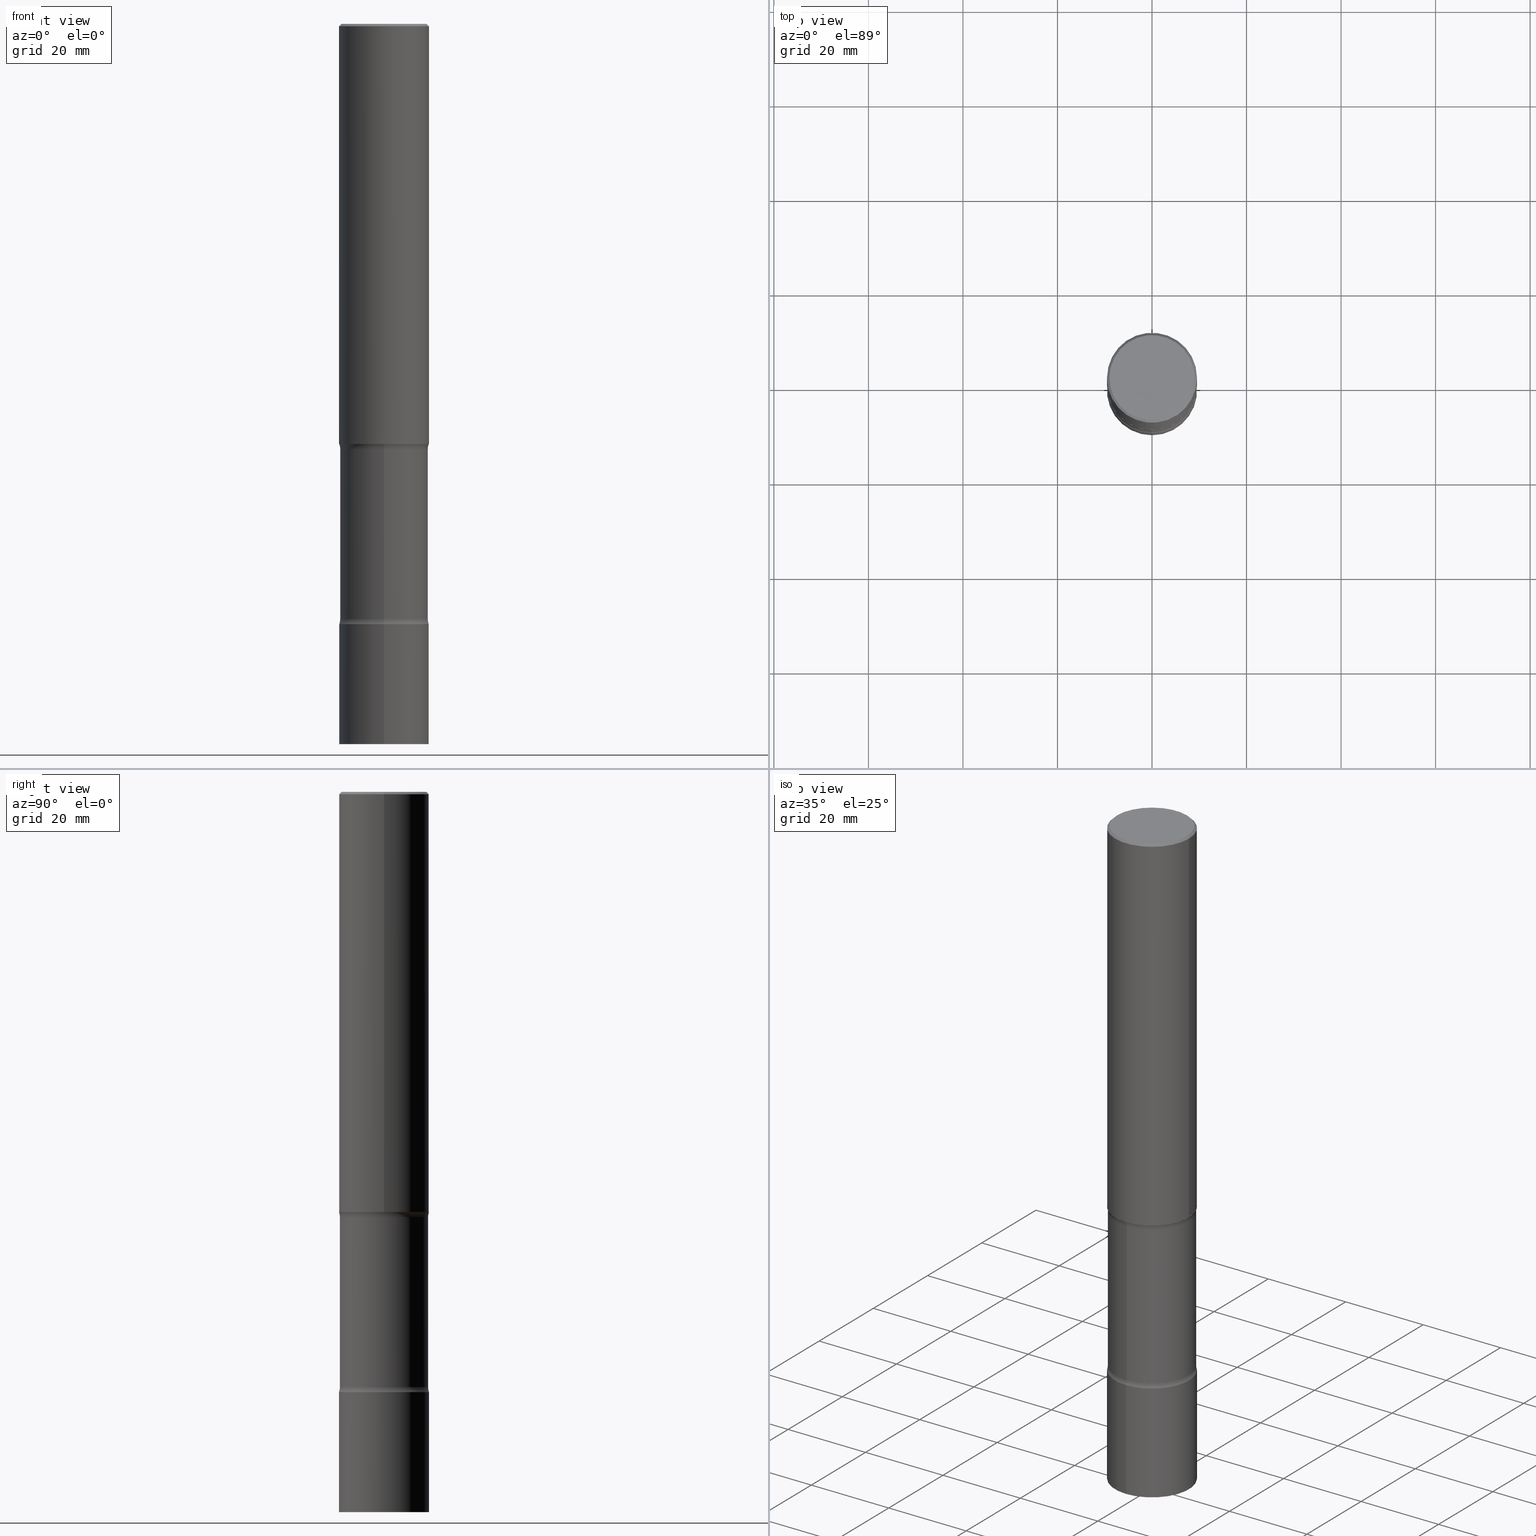
[diagram: canonical four-view strip — front | top / right | iso, engineering-drawing reading convention]
A machine part, canonical four-view strip (front | top / right | iso — engineering-drawing reading convention). The complete STEP part file that produces these views, byte-faithful:
ISO-10303-21;
HEADER;
FILE_DESCRIPTION (( 'STEP AP203' ),
    '1' );
FILE_NAME ('34646.STEP',
    '2024-03-11T13:20:11',
    ( '' ),
    ( '' ),
    'SwSTEP 2.0',
    'SolidWorks 2023',
    '' );
FILE_SCHEMA (( 'CONFIG_CONTROL_DESIGN' ));
ENDSEC;

DATA;
#1 = ORIENTED_EDGE ( 'NONE', *, *, #353, .T. ) ;
#2 = DIRECTION ( 'NONE',  ( -2.445201761866351405E-29, 3.491863761506864371E-15, 1.000000000000000000 ) ) ;
#3 = MECHANICAL_CONTEXT ( 'NONE', #76, 'mechanical' ) ;
#4 = DIRECTION ( 'NONE',  ( 6.982962677686266711E-15, 1.000000000000000000, -2.913971193241876822E-15 ) ) ;
#5 = FACE_OUTER_BOUND ( 'NONE', #504, .T. ) ;
#6 = VECTOR ( 'NONE', #13, 39.37007874015748143 ) ;
#7 = APPROVAL_PERSON_ORGANIZATION ( #447, #31, #332 ) ;
#8 = DIRECTION ( 'NONE',  ( -2.445201761866351405E-29, 3.491863761506864371E-15, 1.000000000000000000 ) ) ;
#9 = DIRECTION ( 'NONE',  ( -2.445201761866351405E-29, 3.491863761506864371E-15, 1.000000000000000000 ) ) ;
#10 = APPLICATION_CONTEXT ( 'configuration controlled 3d designs of mechanical parts and assemblies' ) ;
#11 = FACE_OUTER_BOUND ( 'NONE', #357, .T. ) ;
#12 = CARTESIAN_POINT ( 'NONE',  ( 1.212305259894691470E-28, -1.730850616944349018E-14, -4.957353194726919376 ) ) ;
#13 = DIRECTION ( 'NONE',  ( -0.7071067811865472397, 2.468850131082253905E-15, -0.7071067811865477948 ) ) ;
#14 = AXIS2_PLACEMENT_3D ( 'NONE', #161, #361, #438 ) ;
#15 = VECTOR ( 'NONE', #487, 39.37007874015748143 ) ;
#16 = APPROVAL_STATUS ( 'not_yet_approved' ) ;
#17 = DIRECTION ( 'NONE',  ( -2.445468806185136597E-29, 3.491481338843145583E-15, 1.000000000000000000 ) ) ;
#18 = SECURITY_CLASSIFICATION_LEVEL ( 'unclassified' ) ;
#19 = CARTESIAN_POINT ( 'NONE',  ( 8.301035426953627063E-29, -1.258980630160007974E-14, -3.500000000000000888 ) ) ;
#20 = CARTESIAN_POINT ( 'NONE',  ( 1.467121057119811123E-28, -2.095118256904118859E-14, -6.000000000000000888 ) ) ;
#21 = CIRCLE ( 'NONE', #421, 0.3750000000000000555 ) ;
#22 = PERSON_AND_ORGANIZATION ( #69, #105 ) ;
#23 = AXIS2_PLACEMENT_3D ( 'NONE', #44, #90, #124 ) ;
#24 = DIRECTION ( 'NONE',  ( -2.445201761866351405E-29, 3.491863761506864371E-15, 1.000000000000000000 ) ) ;
#25 = FACE_OUTER_BOUND ( 'NONE', #108, .T. ) ;
#26 = ORIENTED_EDGE ( 'NONE', *, *, #61, .F. ) ;
#27 = APPROVAL_ROLE ( '' ) ;
#28 = CARTESIAN_POINT ( 'NONE',  ( 1.222600880933175787E-28, -1.745931880753432383E-14, -5.000000000000000000 ) ) ;
#29 = DIRECTION ( 'NONE',  ( 2.616648921585421655E-29, -3.246341670622831231E-15, -1.000000000000000000 ) ) ;
#30 = ORIENTED_EDGE ( 'NONE', *, *, #186, .T. ) ;
#31 = APPROVAL ( #16, 'UNSPECIFIED' ) ;
#32 = AXIS2_PLACEMENT_3D ( 'NONE', #253, #412, #101 ) ;
#33 = LOCAL_TIME ( 9, 20, 10.00000000000000000, #455 ) ;
#34 = ORIENTED_EDGE ( 'NONE', *, *, #459, .F. ) ;
#35 = VERTEX_POINT ( 'NONE', #166 ) ;
#36 = EDGE_LOOP ( 'NONE', ( #309, #81, #173, #71 ) ) ;
#37 = EDGE_LOOP ( 'NONE', ( #424, #301 ) ) ;
#38 = AXIS2_PLACEMENT_3D ( 'NONE', #342, #24, #213 ) ;
#39 = EDGE_CURVE ( 'NONE', #155, #110, #448, .T. ) ;
#40 = ORIENTED_EDGE ( 'NONE', *, *, #168, .T. ) ;
#41 = CARTESIAN_POINT ( 'NONE',  ( -1.043851414335219820E-46, 1.490343170380447200E-32, 4.268512490100411279E-18 ) ) ;
#42 = ADVANCED_FACE ( 'NONE', ( #11 ), #162, .F. ) ;
#43 = CARTESIAN_POINT ( 'NONE',  ( 1.212305259894691470E-28, -1.730850616944349018E-14, -4.957353194726919376 ) ) ;
#44 = CARTESIAN_POINT ( 'NONE',  ( 4.890937612370289799E-31, -6.982962677686315028E-17, -0.02000000000000006981 ) ) ;
#45 = CIRCLE ( 'NONE', #274, 0.3675000000000002709 ) ;
#46 = AXIS2_PLACEMENT_3D ( 'NONE', #259, #102, #413 ) ;
#47 = CARTESIAN_POINT ( 'NONE',  ( -2.618611004132228137E-15, -0.3750000000000175970, -4.999999999999999112 ) ) ;
#48 = CARTESIAN_POINT ( 'NONE',  ( 1.211441709230488827E-28, -1.732087270645738470E-14, -4.957353194726919376 ) ) ;
#49 = CARTESIAN_POINT ( 'NONE',  ( 0.000000000000000000, 0.000000000000000000, 0.000000000000000000 ) ) ;
#50 = PLANE ( 'NONE',  #57 ) ;
#51 = LINE ( 'NONE', #367, #507 ) ;
#52 = PERSON_AND_ORGANIZATION ( #69, #105 ) ;
#53 = CARTESIAN_POINT ( 'NONE',  ( 1.211441709230488827E-28, -1.732087270645738470E-14, -4.957353194726919376 ) ) ;
#54 = DIRECTION ( 'NONE',  ( 2.616648921585421655E-29, -3.246341670622831231E-15, -1.000000000000000000 ) ) ;
#55 = ADVANCED_FACE ( 'NONE', ( #235 ), #435, .T. ) ;
#56 = CLOSED_SHELL ( 'NONE', ( #276, #156, #136, #302 ) ) ;
#57 = AXIS2_PLACEMENT_3D ( 'NONE', #205, #67, #180 ) ;
#58 = COORDINATED_UNIVERSAL_TIME_OFFSET ( 5, 0, .BEHIND. ) ;
#59 = FACE_OUTER_BOUND ( 'NONE', #107, .T. ) ;
#60 = CARTESIAN_POINT ( 'NONE',  ( 0.3750000000000000555, -1.483879569008336409E-14, -3.500000000000000888 ) ) ;
#61 = EDGE_CURVE ( 'NONE', #429, #352, #285, .T. ) ;
#62 = LINE ( 'NONE', #440, #319 ) ;
#63 = DIRECTION ( 'NONE',  ( -1.000000000000000000, 6.982962677686265922E-15, -4.883557194083112901E-29 ) ) ;
#64 = VERTEX_POINT ( 'NONE', #47 ) ;
#65 = AXIS2_PLACEMENT_3D ( 'NONE', #286, #317, #364 ) ;
#66 = CONICAL_SURFACE ( 'NONE', #230, 0.3749999999999997780, 0.7853981633974479459 ) ;
#67 = DIRECTION ( 'NONE',  ( 2.445201761866351405E-29, -3.491863761506864371E-15, -1.000000000000000000 ) ) ;
#68 = DIRECTION ( 'NONE',  ( -2.445201761866351405E-29, 3.491863761506864371E-15, 1.000000000000000000 ) ) ;
#69 = PERSON ( 'UNSPECIFIED', 'UNSPECIFIED', 'UNSPECIFIED', ('UNSPECIFIED'), ('UNSPECIFIED'), ('UNSPECIFIED') ) ;
#70 = EDGE_LOOP ( 'NONE', ( #85, #103 ) ) ;
#71 = ORIENTED_EDGE ( 'NONE', *, *, #347, .T. ) ;
#72 = ADVANCED_FACE ( 'NONE', ( #323 ), #117, .F. ) ;
#73 = ORIENTED_EDGE ( 'NONE', *, *, #39, .F. ) ;
#74 = EDGE_CURVE ( 'NONE', #466, #231, #439, .T. ) ;
#75 = AXIS2_PLACEMENT_3D ( 'NONE', #322, #9, #288 ) ;
#76 = APPLICATION_CONTEXT ( 'configuration controlled 3d designs of mechanical parts and assemblies' ) ;
#77 = CIRCLE ( 'NONE', #178, 0.3675000000000003264 ) ;
#78 = ORIENTED_EDGE ( 'NONE', *, *, #111, .T. ) ;
#79 = ORIENTED_EDGE ( 'NONE', *, *, #111, .F. ) ;
#80 = EDGE_CURVE ( 'NONE', #505, #497, #267, .T. ) ;
#81 = ORIENTED_EDGE ( 'NONE', *, *, #80, .F. ) ;
#82 = ORIENTED_EDGE ( 'NONE', *, *, #393, .T. ) ;
#83 = AXIS2_PLACEMENT_3D ( 'NONE', #374, #63, #135 ) ;
#84 = DIRECTION ( 'NONE',  ( 0.000000000000000000, 0.000000000000000000, 1.000000000000000000 ) ) ;
#85 = ORIENTED_EDGE ( 'NONE', *, *, #80, .T. ) ;
#86 = ADVANCED_FACE ( 'NONE', ( #368 ), #232, .T. ) ;
#87 = CARTESIAN_POINT ( 'NONE',  ( 2.463921585354229188E-29, -3.843271519251016677E-14, -5.999999999999999112 ) ) ;
#88 = DIRECTION ( 'NONE',  ( 2.616648921585421655E-29, -3.246341670622831231E-15, -1.000000000000000000 ) ) ;
#89 = ORIENTED_EDGE ( 'NONE', *, *, #479, .F. ) ;
#90 = DIRECTION ( 'NONE',  ( -2.445468806185136597E-29, 3.491481338843145583E-15, 1.000000000000000000 ) ) ;
#91 = DIRECTION ( 'NONE',  ( -2.445201761866351405E-29, 3.491863761506864371E-15, 1.000000000000000000 ) ) ;
#92 = PERSON_AND_ORGANIZATION ( #69, #105 ) ;
#93 = EDGE_CURVE ( 'NONE', #352, #466, #460, .T. ) ;
#94 = LINE ( 'NONE', #400, #354 ) ;
#95 = DIRECTION ( 'NONE',  ( -6.982962677686265922E-15, -1.000000000000000000, 2.913971193241879977E-15 ) ) ;
#96 = SHAPE_DEFINITION_REPRESENTATION ( #149, #271 ) ;
#97 = CIRCLE ( 'NONE', #434, 0.1249999999999998335 ) ;
#98 = DATE_AND_TIME ( #375, #33 ) ;
#99 = FACE_OUTER_BOUND ( 'NONE', #37, .T. ) ;
#100 = ADVANCED_FACE ( 'NONE', ( #198 ), #146, .F. ) ;
#101 = DIRECTION ( 'NONE',  ( 1.000000000000000000, -6.982962677686265922E-15, 4.876176775795935793E-29 ) ) ;
#102 = DIRECTION ( 'NONE',  ( 2.616648921585421655E-29, -3.246341670622831231E-15, -1.000000000000000000 ) ) ;
#103 = ORIENTED_EDGE ( 'NONE', *, *, #308, .T. ) ;
#104 = AXIS2_PLACEMENT_3D ( 'NONE', #491, #415, #486 ) ;
#105 = ORGANIZATION ( 'UNSPECIFIED', 'UNSPECIFIED', '' ) ;
#106 = EDGE_LOOP ( 'NONE', ( #157, #114, #392, #270 ) ) ;
#107 = EDGE_LOOP ( 'NONE', ( #260, #458, #194, #129 ) ) ;
#108 = EDGE_LOOP ( 'NONE', ( #430, #185 ) ) ;
#109 = AXIS2_PLACEMENT_3D ( 'NONE', #299, #17, #379 ) ;
#110 = VERTEX_POINT ( 'NONE', #405 ) ;
#111 = EDGE_CURVE ( 'NONE', #222, #112, #94, .T. ) ;
#112 = VERTEX_POINT ( 'NONE', #366 ) ;
#113 = MANIFOLD_SOLID_BREP ( 'Body-Move/Copy2[4]', #326 ) ;
#114 = ORIENTED_EDGE ( 'NONE', *, *, #93, .T. ) ;
#115 = MANIFOLD_SOLID_BREP ( 'Body-Move/Copy2[1]', #56 ) ;
#116 = ADVANCED_FACE ( 'NONE', ( #159 ), #381, .F. ) ;
#117 = PLANE ( 'NONE',  #188 ) ;
#118 = AXIS2_PLACEMENT_3D ( 'NONE', #28, #144, #172 ) ;
#119 = CARTESIAN_POINT ( 'NONE',  ( -2.618611004132204077E-15, -0.3750000000000210387, -5.999999999999999112 ) ) ;
#120 = LOCAL_TIME ( 9, 20, 10.00000000000000000, #417 ) ;
#121 = DIRECTION ( 'NONE',  ( 6.982962677686265922E-15, 1.000000000000000000, -2.973439993103957486E-15 ) ) ;
#122 = CYLINDRICAL_SURFACE ( 'NONE', #75, 0.3750000000000001110 ) ;
#123 = DIRECTION ( 'NONE',  ( 2.616648921585421655E-29, -3.246341670622831231E-15, -1.000000000000000000 ) ) ;
#124 = DIRECTION ( 'NONE',  ( 1.000000000000000000, -6.982962677686265922E-15, 0.000000000000000000 ) ) ;
#125 = CARTESIAN_POINT ( 'NONE',  ( 0.000000000000000000, 0.000000000000000000, 0.000000000000000000 ) ) ;
#126 = CARTESIAN_POINT ( 'NONE',  ( 8.412627143980496654E-29, -1.272825240267701729E-14, -3.542646805273081512 ) ) ;
#127 = CIRCLE ( 'NONE', #348, 0.3750000000000004996 ) ;
#128 = EDGE_CURVE ( 'NONE', #228, #64, #420, .T. ) ;
#129 = ORIENTED_EDGE ( 'NONE', *, *, #128, .F. ) ;
#130 = CARTESIAN_POINT ( 'NONE',  ( -1.043851414335219820E-46, 1.490343170380447200E-32, 4.268512490100411279E-18 ) ) ;
#131 = PERSON_AND_ORGANIZATION ( #69, #105 ) ;
#132 = DIRECTION ( 'NONE',  ( -2.445201761866351405E-29, 3.491863761506864371E-15, 1.000000000000000000 ) ) ;
#133 = PERSON_AND_ORGANIZATION_ROLE ( 'creator' ) ;
#134 = CARTESIAN_POINT ( 'NONE',  ( -0.3750000000000000555, -3.480471897263558651E-15, -3.500000000000000888 ) ) ;
#135 = DIRECTION ( 'NONE',  ( -6.982962677686265133E-15, -1.000000000000000000, 0.000000000000000000 ) ) ;
#136 = ADVANCED_FACE ( 'NONE', ( #163 ), #50, .F. ) ;
#137 = AXIS2_PLACEMENT_3D ( 'NONE', #358, #2, #95 ) ;
#138 = CC_DESIGN_APPROVAL ( #211, ( #189 ) ) ;
#139 = DATE_AND_TIME ( #215, #387 ) ;
#140 = FACE_OUTER_BOUND ( 'NONE', #257, .T. ) ;
#141 = LINE ( 'NONE', #346, #341 ) ;
#142 = ORIENTED_EDGE ( 'NONE', *, *, #369, .T. ) ;
#143 = PERSON_AND_ORGANIZATION_ROLE ( 'creator' ) ;
#144 = DIRECTION ( 'NONE',  ( 2.616648921585421655E-29, -3.246341670622831231E-15, -1.000000000000000000 ) ) ;
#145 = CARTESIAN_POINT ( 'NONE',  ( 2.566238784049788529E-15, 0.3674999999999875588, -3.542646805273082400 ) ) ;
#146 = TOROIDAL_SURFACE ( 'NONE', #268, 0.4924999999999999378, 0.1249999999999998473 ) ;
#147 = EDGE_CURVE ( 'NONE', #269, #64, #418, .T. ) ;
#148 = TOROIDAL_SURFACE ( 'NONE', #193, 0.4925000000000002154, 0.1249999999999999584 ) ;
#149 = PRODUCT_DEFINITION_SHAPE ( 'NONE', 'NONE',  #187 ) ;
#150 = ORIENTED_EDGE ( 'NONE', *, *, #316, .T. ) ;
#151 = EDGE_LOOP ( 'NONE', ( #488, #463, #310, #196 ) ) ;
#152 = EDGE_CURVE ( 'NONE', #352, #429, #45, .T. ) ;
#153 = CONICAL_SURFACE ( 'NONE', #217, 0.3749999999999997780, 0.7853981633974479459 ) ;
#154 = APPROVAL_PERSON_ORGANIZATION ( #52, #266, #27 ) ;
#155 = VERTEX_POINT ( 'NONE', #255 ) ;
#156 = ADVANCED_FACE ( 'NONE', ( #59 ), #294, .T. ) ;
#157 = ORIENTED_EDGE ( 'NONE', *, *, #152, .F. ) ;
#158 = ADVANCED_FACE ( 'NONE', ( #140 ), #183, .T. ) ;
#159 = FACE_OUTER_BOUND ( 'NONE', #191, .T. ) ;
#160 = FACE_OUTER_BOUND ( 'NONE', #335, .T. ) ;
#161 = CARTESIAN_POINT ( 'NONE',  ( 1.484265773091717840E-28, -2.070566047815715111E-14, -5.999999999999999112 ) ) ;
#162 = TOROIDAL_SURFACE ( 'NONE', #312, 0.4924999999999999378, 0.1249999999999998473 ) ;
#163 = FACE_OUTER_BOUND ( 'NONE', #207, .T. ) ;
#164 = DIRECTION ( 'NONE',  ( 2.616648921585421655E-29, -3.246341670622831231E-15, -1.000000000000000000 ) ) ;
#165 = DIRECTION ( 'NONE',  ( 6.860497997771532351E-15, 1.000000000000000000, 0.000000000000000000 ) ) ;
#166 = CARTESIAN_POINT ( 'NONE',  ( 2.664535259100510198E-15, 0.3749999999999791278, -6.000000000000001776 ) ) ;
#167 = DIRECTION ( 'NONE',  ( -2.445468806185136597E-29, 3.491481338843145583E-15, 1.000000000000000000 ) ) ;
#168 = EDGE_CURVE ( 'NONE', #231, #466, #127, .T. ) ;
#169 = CARTESIAN_POINT ( 'NONE',  ( 0.3749999999999997780, -2.642516375941186056E-15, -0.02000000000000006981 ) ) ;
#170 = EDGE_CURVE ( 'NONE', #383, #465, #177, .T. ) ;
#171 = DATE_AND_TIME ( #292, #410 ) ;
#172 = DIRECTION ( 'NONE',  ( 6.982962677686265922E-15, 1.000000000000000000, -2.913971193241879977E-15 ) ) ;
#173 = ORIENTED_EDGE ( 'NONE', *, *, #272, .T. ) ;
#174 = APPROVAL_ROLE ( '' ) ;
#175 = DIRECTION ( 'NONE',  ( 2.616648921585421655E-29, -3.246341670622831231E-15, -1.000000000000000000 ) ) ;
#176 = CARTESIAN_POINT ( 'NONE',  ( -2.572686749164244267E-15, -0.3750000000000131006, -3.500000000000000000 ) ) ;
#177 = CIRCLE ( 'NONE', #118, 0.3750000000000001110 ) ;
#178 = AXIS2_PLACEMENT_3D ( 'NONE', #48, #54, #318 ) ;
#179 = DATE_AND_TIME ( #490, #355 ) ;
#180 = DIRECTION ( 'NONE',  ( 6.982962677686265922E-15, 1.000000000000000000, -3.491863761506864371E-15 ) ) ;
#181 = PLANE ( 'NONE',  #275 ) ;
#182 = APPROVAL_STATUS ( 'not_yet_approved' ) ;
#183 = CYLINDRICAL_SURFACE ( 'NONE', #339, 0.3749999999999998890 ) ;
#184 = FACE_OUTER_BOUND ( 'NONE', #70, .T. ) ;
#185 = ORIENTED_EDGE ( 'NONE', *, *, #459, .T. ) ;
#186 = EDGE_CURVE ( 'NONE', #222, #462, #223, .T. ) ;
#187 = PRODUCT_DEFINITION ( 'UNKNOWN', '', #189, #218 ) ;
#188 = AXIS2_PLACEMENT_3D ( 'NONE', #437, #247, #242 ) ;
#189 = PRODUCT_DEFINITION_FORMATION_WITH_SPECIFIED_SOURCE ( 'ANY', '', #464, .NOT_KNOWN. ) ;
#190 = ORIENTED_EDGE ( 'NONE', *, *, #202, .T. ) ;
#191 = EDGE_LOOP ( 'NONE', ( #225, #26, #351, #40 ) ) ;
#192 = VERTEX_POINT ( 'NONE', #169 ) ;
#193 = AXIS2_PLACEMENT_3D ( 'NONE', #201, #164, #443 ) ;
#194 = ORIENTED_EDGE ( 'NONE', *, *, #147, .T. ) ;
#195 =( NAMED_UNIT ( * ) SI_UNIT ( $, .STERADIAN. ) SOLID_ANGLE_UNIT ( ) );
#196 = ORIENTED_EDGE ( 'NONE', *, *, #147, .F. ) ;
#197 =( NAMED_UNIT ( * ) PLANE_ANGLE_UNIT ( ) SI_UNIT ( $, .RADIAN. ) );
#198 = FACE_OUTER_BOUND ( 'NONE', #469, .T. ) ;
#199 = CARTESIAN_POINT ( 'NONE',  ( 4.890937612370289799E-31, -6.982962677686315028E-17, -0.02000000000000006981 ) ) ;
#200 = DIRECTION ( 'NONE',  ( -2.445468806185136877E-29, 3.491481338843145188E-15, 1.000000000000000000 ) ) ;
#201 = CARTESIAN_POINT ( 'NONE',  ( 8.424977346365879143E-29, -1.271056620993128318E-14, -3.542646805273081512 ) ) ;
#202 = EDGE_CURVE ( 'NONE', #64, #228, #261, .T. ) ;
#203 = DIRECTION ( 'NONE',  ( 2.616648921585421655E-29, -3.246341670622831231E-15, -1.000000000000000000 ) ) ;
#204 = FACE_OUTER_BOUND ( 'NONE', #106, .T. ) ;
#205 = CARTESIAN_POINT ( 'NONE',  ( 1.222734403092568523E-28, -1.745740669421572989E-14, -5.000000000000000000 ) ) ;
#206 = PERSON_AND_ORGANIZATION ( #69, #105 ) ;
#207 = EDGE_LOOP ( 'NONE', ( #190, #313 ) ) ;
#208 =( GEOMETRIC_REPRESENTATION_CONTEXT ( 3 ) GLOBAL_UNCERTAINTY_ASSIGNED_CONTEXT ( ( #262 ) ) GLOBAL_UNIT_ASSIGNED_CONTEXT ( ( #238, #197, #195 ) ) REPRESENTATION_CONTEXT ( 'NONE', 'WORKASPACE' ) );
#209 = EDGE_CURVE ( 'NONE', #383, #155, #251, .T. ) ;
#210 = DIRECTION ( 'NONE',  ( 6.982962677686265922E-15, 1.000000000000000000, -2.973439993103957881E-15 ) ) ;
#211 = APPROVAL ( #182, 'UNSPECIFIED' ) ;
#212 = APPROVAL_STATUS ( 'not_yet_approved' ) ;
#213 = DIRECTION ( 'NONE',  ( -6.982962677686265922E-15, -1.000000000000000000, 3.491863761506864371E-15 ) ) ;
#214 = DIRECTION ( 'NONE',  ( -2.445468806185136877E-29, 3.491481338843145188E-15, 1.000000000000000000 ) ) ;
#215 = CALENDAR_DATE ( 2024, 11, 3 ) ;
#216 = DIRECTION ( 'NONE',  ( -2.445201761866351405E-29, 3.491863761506864371E-15, 1.000000000000000000 ) ) ;
#217 = AXIS2_PLACEMENT_3D ( 'NONE', #199, #324, #248 ) ;
#218 = DESIGN_CONTEXT ( 'detailed design', #10, 'design' ) ;
#219 = CARTESIAN_POINT ( 'NONE',  ( -2.618611004132350411E-15, -0.3750000000000001110, 1.309448910565074484E-15 ) ) ;
#220 = DIRECTION ( 'NONE',  ( -6.982962677686265922E-15, -1.000000000000000000, 3.246341670622831231E-15 ) ) ;
#221 = ORIENTED_EDGE ( 'NONE', *, *, #428, .F. ) ;
#222 = VERTEX_POINT ( 'NONE', #134 ) ;
#223 = CIRCLE ( 'NONE', #109, 0.3750000000000000555 ) ;
#224 = CC_DESIGN_APPROVAL ( #266, ( #187 ) ) ;
#225 = ORIENTED_EDGE ( 'NONE', *, *, #93, .F. ) ;
#226 = CC_DESIGN_PERSON_AND_ORGANIZATION_ASSIGNMENT ( #498, #245, ( #189 ) ) ;
#227 = EDGE_LOOP ( 'NONE', ( #388, #279, #73, #345 ) ) ;
#228 = VERTEX_POINT ( 'NONE', #296 ) ;
#229 = AXIS2_PLACEMENT_3D ( 'NONE', #395, #445, #165 ) ;
#230 = AXIS2_PLACEMENT_3D ( 'NONE', #236, #240, #398 ) ;
#231 = VERTEX_POINT ( 'NONE', #449 ) ;
#232 = CYLINDRICAL_SURFACE ( 'NONE', #489, 0.3675000000000002709 ) ;
#233 = CYLINDRICAL_SURFACE ( 'NONE', #386, 0.3749999999999998890 ) ;
#234 = DIRECTION ( 'NONE',  ( -2.445468806185136597E-29, 3.491481338843145583E-15, 1.000000000000000000 ) ) ;
#235 = FACE_OUTER_BOUND ( 'NONE', #493, .T. ) ;
#236 = CARTESIAN_POINT ( 'NONE',  ( 4.890937612370289799E-31, -6.982962677686315028E-17, -0.02000000000000006981 ) ) ;
#237 = ADVANCED_FACE ( 'NONE', ( #99 ), #451, .F. ) ;
#238 =( CONVERSION_BASED_UNIT ( 'INCH', #327 ) LENGTH_UNIT ( ) NAMED_UNIT ( #500 ) );
#239 = DIRECTION ( 'NONE',  ( 2.616648921585421655E-29, -3.246341670622831231E-15, -1.000000000000000000 ) ) ;
#240 = DIRECTION ( 'NONE',  ( 2.445468806185136597E-29, -3.491481338843145583E-15, -1.000000000000000000 ) ) ;
#241 = CC_DESIGN_PERSON_AND_ORGANIZATION_ASSIGNMENT ( #22, #494, ( #464 ) ) ;
#242 = DIRECTION ( 'NONE',  ( 6.982962677686265922E-15, 1.000000000000000000, -3.246341670622831231E-15 ) ) ;
#243 = DIRECTION ( 'NONE',  ( 0.7071067811865472397, -7.319954787623254468E-15, -0.7071067811865477948 ) ) ;
#244 = FACE_OUTER_BOUND ( 'NONE', #265, .T. ) ;
#245 = PERSON_AND_ORGANIZATION_ROLE ( 'design_supplier' ) ;
#246 = CC_DESIGN_PERSON_AND_ORGANIZATION_ASSIGNMENT ( #92, #303, ( #473 ) ) ;
#247 = DIRECTION ( 'NONE',  ( 2.616648921585421095E-29, -3.246341670622831231E-15, -1.000000000000000000 ) ) ;
#248 = DIRECTION ( 'NONE',  ( -1.000000000000000000, 6.982962677686265922E-15, 0.000000000000000000 ) ) ;
#249 = EDGE_CURVE ( 'NONE', #35, #228, #62, .T. ) ;
#250 = CARTESIAN_POINT ( 'NONE',  ( 4.890937612370289799E-31, -6.982962677686315028E-17, -0.02000000000000006981 ) ) ;
#251 = CIRCLE ( 'NONE', #104, 0.1249999999999998335 ) ;
#252 = AXIS2_PLACEMENT_3D ( 'NONE', #125, #84, #284 ) ;
#253 = CARTESIAN_POINT ( 'NONE',  ( 8.559140821647979210E-29, -1.222018468595101250E-14, -3.500000000000000888 ) ) ;
#254 = DIRECTION ( 'NONE',  ( -1.000000000000000000, 6.982962677686265922E-15, -4.876176775795935793E-29 ) ) ;
#255 = CARTESIAN_POINT ( 'NONE',  ( 2.566238784049826394E-15, 0.3674999999999829514, -4.957353194726921153 ) ) ;
#256 = LINE ( 'NONE', #496, #15 ) ;
#257 = EDGE_LOOP ( 'NONE', ( #150, #78, #263, #221 ) ) ;
#258 = ADVANCED_FACE ( 'NONE', ( #244 ), #233, .T. ) ;
#259 = CARTESIAN_POINT ( 'NONE',  ( 1.222600880933175787E-28, -1.745931880753432383E-14, -5.000000000000000000 ) ) ;
#260 = ORIENTED_EDGE ( 'NONE', *, *, #249, .F. ) ;
#261 = CIRCLE ( 'NONE', #328, 0.3750000000000001110 ) ;
#262 = UNCERTAINTY_MEASURE_WITH_UNIT (LENGTH_MEASURE( 1.000000000000000082E-05 ), #238, 'distance_accuracy_value', 'NONE');
#263 = ORIENTED_EDGE ( 'NONE', *, *, #393, .F. ) ;
#264 = ORIENTED_EDGE ( 'NONE', *, *, #168, .F. ) ;
#265 = EDGE_LOOP ( 'NONE', ( #79, #30, #356, #468 ) ) ;
#266 = APPROVAL ( #212, 'UNSPECIFIED' ) ;
#267 = CIRCLE ( 'NONE', #472, 0.3549999999999997047 ) ;
#268 = AXIS2_PLACEMENT_3D ( 'NONE', #43, #123, #372 ) ;
#269 = VERTEX_POINT ( 'NONE', #119 ) ;
#270 = ORIENTED_EDGE ( 'NONE', *, *, #384, .F. ) ;
#271 = ADVANCED_BREP_SHAPE_REPRESENTATION ( '34646', ( #115, #278, #113, #252 ), #208 ) ;
#272 = EDGE_CURVE ( 'NONE', #505, #112, #329, .T. ) ;
#273 = EDGE_LOOP ( 'NONE', ( #264, #390 ) ) ;
#274 = AXIS2_PLACEMENT_3D ( 'NONE', #456, #409, #210 ) ;
#275 = AXIS2_PLACEMENT_3D ( 'NONE', #343, #419, #220 ) ;
#276 = ADVANCED_FACE ( 'NONE', ( #365 ), #122, .T. ) ;
#277 = DIRECTION ( 'NONE',  ( 2.616648921585421655E-29, -3.246341670622831231E-15, -1.000000000000000000 ) ) ;
#278 = MANIFOLD_SOLID_BREP ( 'Body-Move/Copy2[2]', #471 ) ;
#279 = ORIENTED_EDGE ( 'NONE', *, *, #431, .T. ) ;
#280 = CARTESIAN_POINT ( 'NONE',  ( 8.559140821647979210E-29, -1.222018468595101250E-14, -3.500000000000000888 ) ) ;
#281 = DIRECTION ( 'NONE',  ( 1.000000000000000000, -6.982962677686265922E-15, 4.876231632511992107E-29 ) ) ;
#282 = DIRECTION ( 'NONE',  ( -2.445468806185136597E-29, 3.491481338843145583E-15, 1.000000000000000000 ) ) ;
#283 = EDGE_CURVE ( 'NONE', #269, #35, #363, .T. ) ;
#284 = DIRECTION ( 'NONE',  ( 1.000000000000000000, 0.000000000000000000, 0.000000000000000000 ) ) ;
#285 = CIRCLE ( 'NONE', #408, 0.3675000000000002709 ) ;
#286 = CARTESIAN_POINT ( 'NONE',  ( 8.424977346365879143E-29, -1.271056620993128318E-14, -3.542646805273081512 ) ) ;
#287 = CIRCLE ( 'NONE', #83, 0.1249999999999999584 ) ;
#288 = DIRECTION ( 'NONE',  ( -6.982962677686265922E-15, -1.000000000000000000, 3.491863761506864371E-15 ) ) ;
#289 = CALENDAR_DATE ( 2024, 11, 3 ) ;
#290 = DIRECTION ( 'NONE',  ( 6.982962677686265922E-15, 1.000000000000000000, -3.246341670622831231E-15 ) ) ;
#291 = DIRECTION ( 'NONE',  ( 1.000000000000000000, -6.982962677686265922E-15, 4.876231632511992107E-29 ) ) ;
#292 = CALENDAR_DATE ( 2024, 11, 3 ) ;
#293 = CC_DESIGN_PERSON_AND_ORGANIZATION_ASSIGNMENT ( #131, #143, ( #187 ) ) ;
#294 = CYLINDRICAL_SURFACE ( 'NONE', #38, 0.3750000000000001110 ) ;
#295 = APPROVAL_DATE_TIME ( #139, #31 ) ;
#296 = CARTESIAN_POINT ( 'NONE',  ( 2.664535259100522820E-15, 0.3749999999999826250, -5.000000000000000888 ) ) ;
#297 = DIRECTION ( 'NONE',  ( -2.445468806185136597E-29, 3.491481338843145583E-15, 1.000000000000000000 ) ) ;
#298 = CC_DESIGN_APPROVAL ( #31, ( #473 ) ) ;
#299 = CARTESIAN_POINT ( 'NONE',  ( 8.559140821647979210E-29, -1.222018468595101250E-14, -3.500000000000000888 ) ) ;
#300 = CARTESIAN_POINT ( 'NONE',  ( 0.3549999999999997047, -2.538996582575039076E-15, 4.268512490117958041E-18 ) ) ;
#301 = ORIENTED_EDGE ( 'NONE', *, *, #186, .F. ) ;
#302 = ADVANCED_FACE ( 'NONE', ( #5 ), #401, .T. ) ;
#303 = PERSON_AND_ORGANIZATION_ROLE ( 'classification_officer' ) ;
#304 = DIRECTION ( 'NONE',  ( 1.000000000000000000, -6.982962677686265922E-15, 0.000000000000000000 ) ) ;
#305 = ORIENTED_EDGE ( 'NONE', *, *, #360, .F. ) ;
#306 = AXIS2_PLACEMENT_3D ( 'NONE', #53, #478, #121 ) ;
#307 = CIRCLE ( 'NONE', #461, 0.3750000000000001110 ) ;
#308 = EDGE_CURVE ( 'NONE', #497, #505, #399, .T. ) ;
#309 = ORIENTED_EDGE ( 'NONE', *, *, #353, .F. ) ;
#310 = ORIENTED_EDGE ( 'NONE', *, *, #202, .F. ) ;
#311 = ORIENTED_EDGE ( 'NONE', *, *, #209, .F. ) ;
#312 = AXIS2_PLACEMENT_3D ( 'NONE', #12, #277, #290 ) ;
#313 = ORIENTED_EDGE ( 'NONE', *, *, #128, .T. ) ;
#314 = ADVANCED_FACE ( 'NONE', ( #403 ), #153, .T. ) ;
#315 = ORIENTED_EDGE ( 'NONE', *, *, #39, .T. ) ;
#316 = EDGE_CURVE ( 'NONE', #462, #222, #21, .T. ) ;
#317 = DIRECTION ( 'NONE',  ( 2.616648921585421655E-29, -3.246341670622831231E-15, -1.000000000000000000 ) ) ;
#318 = DIRECTION ( 'NONE',  ( 6.982962677686265922E-15, 1.000000000000000000, -2.973439993103957486E-15 ) ) ;
#319 = VECTOR ( 'NONE', #91, 39.37007874015748143 ) ;
#320 = CIRCLE ( 'NONE', #46, 0.3750000000000001110 ) ;
#321 = CARTESIAN_POINT ( 'NONE',  ( 8.301035426953627063E-29, -1.258980630160007974E-14, -3.500000000000000888 ) ) ;
#322 = CARTESIAN_POINT ( 'NONE',  ( 0.000000000000000000, 0.000000000000000000, 0.000000000000000000 ) ) ;
#323 = FACE_OUTER_BOUND ( 'NONE', #273, .T. ) ;
#324 = DIRECTION ( 'NONE',  ( 2.445468806185136597E-29, -3.491481338843145583E-15, -1.000000000000000000 ) ) ;
#325 = CARTESIAN_POINT ( 'NONE',  ( 1.222600880933175787E-28, -1.745931880753432383E-14, -5.000000000000000000 ) ) ;
#326 = CLOSED_SHELL ( 'NONE', ( #86, #42, #344, #116, #72, #501, #100, #55 ) ) ;
#327 = LENGTH_MEASURE_WITH_UNIT ( LENGTH_MEASURE( 0.02539999999999999897 ), #394 );
#328 = AXIS2_PLACEMENT_3D ( 'NONE', #482, #132, #333 ) ;
#329 = LINE ( 'NONE', #481, #6 ) ;
#330 = ADVANCED_FACE ( 'NONE', ( #160 ), #66, .T. ) ;
#331 = DIRECTION ( 'NONE',  ( 6.982962677686266711E-15, 1.000000000000000000, -2.913971193241876822E-15 ) ) ;
#332 = APPROVAL_ROLE ( '' ) ;
#333 = DIRECTION ( 'NONE',  ( -6.982962677686265922E-15, -1.000000000000000000, 2.913971193241879977E-15 ) ) ;
#334 = DIRECTION ( 'NONE',  ( 1.000000000000000000, -6.860497997771530774E-15, 4.843800974724443583E-29 ) ) ;
#335 = EDGE_LOOP ( 'NONE', ( #432, #1, #82, #453 ) ) ;
#336 = DATE_TIME_ROLE ( 'creation_date' ) ;
#337 = DIRECTION ( 'NONE',  ( 1.000000000000000000, -6.982962677686266711E-15, 4.876176775795935793E-29 ) ) ;
#338 = CARTESIAN_POINT ( 'NONE',  ( 2.478951750578622237E-15, 0.3549999999999997047, -1.237341619044265441E-15 ) ) ;
#339 = AXIS2_PLACEMENT_3D ( 'NONE', #376, #495, #337 ) ;
#340 = EDGE_CURVE ( 'NONE', #110, #155, #77, .T. ) ;
#341 = VECTOR ( 'NONE', #214, 39.37007874015748143 ) ;
#342 = CARTESIAN_POINT ( 'NONE',  ( 0.000000000000000000, 0.000000000000000000, 0.000000000000000000 ) ) ;
#343 = CARTESIAN_POINT ( 'NONE',  ( 1.222734403092568523E-28, -1.745740669421572989E-14, -5.000000000000000000 ) ) ;
#344 = ADVANCED_FACE ( 'NONE', ( #204 ), #148, .F. ) ;
#345 = ORIENTED_EDGE ( 'NONE', *, *, #369, .F. ) ;
#346 = CARTESIAN_POINT ( 'NONE',  ( 0.3749999999999998890, -2.618611004132349228E-15, 1.828566290923475362E-29 ) ) ;
#347 = EDGE_CURVE ( 'NONE', #112, #192, #450, .T. ) ;
#348 = AXIS2_PLACEMENT_3D ( 'NONE', #19, #175, #331 ) ;
#349 = AXIS2_PLACEMENT_3D ( 'NONE', #338, #492, #254 ) ;
#350 = ORIENTED_EDGE ( 'NONE', *, *, #340, .F. ) ;
#351 = ORIENTED_EDGE ( 'NONE', *, *, #384, .T. ) ;
#352 = VERTEX_POINT ( 'NONE', #477 ) ;
#353 = EDGE_CURVE ( 'NONE', #497, #192, #51, .T. ) ;
#354 = VECTOR ( 'NONE', #200, 39.37007874015748143 ) ;
#355 = LOCAL_TIME ( 9, 20, 10.00000000000000000, #58 ) ;
#356 = ORIENTED_EDGE ( 'NONE', *, *, #428, .T. ) ;
#357 = EDGE_LOOP ( 'NONE', ( #34, #389, #470, #311 ) ) ;
#358 = CARTESIAN_POINT ( 'NONE',  ( 1.467121057119811123E-28, -2.095118256904118859E-14, -6.000000000000000888 ) ) ;
#359 = PRODUCT_RELATED_PRODUCT_CATEGORY ( 'detail', '', ( #464 ) ) ;
#360 = EDGE_CURVE ( 'NONE', #465, #110, #97, .T. ) ;
#361 = DIRECTION ( 'NONE',  ( 2.616648921585421655E-29, -3.246341670622831231E-15, -1.000000000000000000 ) ) ;
#362 = DIRECTION ( 'NONE',  ( 1.000000000000000000, -6.982962677686266711E-15, 4.876176775795935793E-29 ) ) ;
#363 = CIRCLE ( 'NONE', #137, 0.3750000000000001110 ) ;
#364 = DIRECTION ( 'NONE',  ( 6.982962677686265922E-15, 1.000000000000000000, -3.246341670622831231E-15 ) ) ;
#365 = FACE_OUTER_BOUND ( 'NONE', #151, .T. ) ;
#366 = CARTESIAN_POINT ( 'NONE',  ( -0.3749999999999997780, 2.548781377355484746E-15, -0.02000000000000006981 ) ) ;
#367 = CARTESIAN_POINT ( 'NONE',  ( 0.3749999999999997780, -2.642516375941186056E-15, -0.02000000000000006981 ) ) ;
#368 = FACE_OUTER_BOUND ( 'NONE', #227, .T. ) ;
#369 = EDGE_CURVE ( 'NONE', #429, #155, #256, .T. ) ;
#370 = DATE_TIME_ROLE ( 'classification_date' ) ;
#371 = AXIS2_PLACEMENT_3D ( 'NONE', #321, #203, #4 ) ;
#372 = DIRECTION ( 'NONE',  ( 6.982962677686265922E-15, 1.000000000000000000, -3.246341670622831231E-15 ) ) ;
#373 = AXIS2_PLACEMENT_3D ( 'NONE', #250, #297, #304 ) ;
#374 = CARTESIAN_POINT ( 'NONE',  ( 3.439109118760571867E-15, 0.4924999999999875033, -3.542646805273083288 ) ) ;
#375 = CALENDAR_DATE ( 2024, 11, 3 ) ;
#376 = CARTESIAN_POINT ( 'NONE',  ( 0.000000000000000000, 0.000000000000000000, 0.000000000000000000 ) ) ;
#377 = CARTESIAN_POINT ( 'NONE',  ( -2.572686749164203246E-15, -0.3750000000000177081, -4.999999999999999112 ) ) ;
#378 = COORDINATED_UNIVERSAL_TIME_OFFSET ( 5, 0, .BEHIND. ) ;
#379 = DIRECTION ( 'NONE',  ( 1.000000000000000000, -6.982962677686266711E-15, 0.000000000000000000 ) ) ;
#380 = DIRECTION ( 'NONE',  ( -6.982962677686265922E-15, -1.000000000000000000, 2.913971193241879977E-15 ) ) ;
#381 = TOROIDAL_SURFACE ( 'NONE', #65, 0.4925000000000002154, 0.1249999999999999584 ) ;
#382 = CARTESIAN_POINT ( 'NONE',  ( -0.3549999999999997047, 2.513866563967053491E-15, 4.268512490082953109E-18 ) ) ;
#383 = VERTEX_POINT ( 'NONE', #416 ) ;
#384 = EDGE_CURVE ( 'NONE', #429, #231, #287, .T. ) ;
#385 = ORIENTED_EDGE ( 'NONE', *, *, #152, .T. ) ;
#386 = AXIS2_PLACEMENT_3D ( 'NONE', #49, #234, #362 ) ;
#387 = LOCAL_TIME ( 9, 20, 10.00000000000000000, #378 ) ;
#388 = ORIENTED_EDGE ( 'NONE', *, *, #61, .T. ) ;
#389 = ORIENTED_EDGE ( 'NONE', *, *, #360, .T. ) ;
#390 = ORIENTED_EDGE ( 'NONE', *, *, #74, .F. ) ;
#391 = VECTOR ( 'NONE', #29, 39.37007874015748143 ) ;
#392 = ORIENTED_EDGE ( 'NONE', *, *, #74, .T. ) ;
#393 = EDGE_CURVE ( 'NONE', #192, #112, #503, .T. ) ;
#394 =( LENGTH_UNIT ( ) NAMED_UNIT ( * ) SI_UNIT ( $, .METRE. ) );
#395 = CARTESIAN_POINT ( 'NONE',  ( -3.378795263902395959E-15, -0.4925000000000129274, -3.542646805273079735 ) ) ;
#396 = DIRECTION ( 'NONE',  ( 6.982962677686265922E-15, 1.000000000000000000, -3.491863761506864371E-15 ) ) ;
#397 = DIRECTION ( 'NONE',  ( 6.982962677686265922E-15, 1.000000000000000000, -2.973439993103957881E-15 ) ) ;
#398 = DIRECTION ( 'NONE',  ( -1.000000000000000000, 6.982962677686265922E-15, 0.000000000000000000 ) ) ;
#399 = CIRCLE ( 'NONE', #467, 0.3549999999999997047 ) ;
#400 = CARTESIAN_POINT ( 'NONE',  ( -0.3749999999999998890, 2.664535259100374908E-15, -1.844600658845589038E-29 ) ) ;
#401 = PLANE ( 'NONE',  #426 ) ;
#402 = DIRECTION ( 'NONE',  ( -6.982962677686265922E-15, -1.000000000000000000, 2.913971193241879977E-15 ) ) ;
#403 = FACE_OUTER_BOUND ( 'NONE', #36, .T. ) ;
#404 = APPLICATION_PROTOCOL_DEFINITION ( 'international standard', 'config_control_design', 1994, #10 ) ;
#405 = CARTESIAN_POINT ( 'NONE',  ( -2.546959881672560933E-15, -0.3675000000000176459, -4.957353194726918488 ) ) ;
#406 = DIRECTION ( 'NONE',  ( 1.000000000000000000, -6.982962677686266711E-15, 0.000000000000000000 ) ) ;
#407 = PERSON_AND_ORGANIZATION ( #69, #105 ) ;
#408 = AXIS2_PLACEMENT_3D ( 'NONE', #126, #88, #397 ) ;
#409 = DIRECTION ( 'NONE',  ( 2.616648921585421655E-29, -3.246341670622831231E-15, -1.000000000000000000 ) ) ;
#410 = LOCAL_TIME ( 9, 20, 10.00000000000000000, #446 ) ;
#411 = DATE_AND_TIME ( #289, #120 ) ;
#412 = DIRECTION ( 'NONE',  ( -2.438088387897960049E-29, 3.491481338843145188E-15, 1.000000000000000000 ) ) ;
#413 = DIRECTION ( 'NONE',  ( 6.982962677686265922E-15, 1.000000000000000000, -2.913971193241879977E-15 ) ) ;
#414 = CC_DESIGN_PERSON_AND_ORGANIZATION_ASSIGNMENT ( #407, #133, ( #189 ) ) ;
#415 = DIRECTION ( 'NONE',  ( -1.000000000000000000, 6.982962677686265922E-15, -4.883557194083112901E-29 ) ) ;
#416 = CARTESIAN_POINT ( 'NONE',  ( 2.618611004132473473E-15, 0.3749999999999827360, -5.000000000000000888 ) ) ;
#417 = COORDINATED_UNIVERSAL_TIME_OFFSET ( 5, 0, .BEHIND. ) ;
#418 = LINE ( 'NONE', #219, #502 ) ;
#419 = DIRECTION ( 'NONE',  ( -2.616648921585421095E-29, 3.246341670622831231E-15, 1.000000000000000000 ) ) ;
#420 = CIRCLE ( 'NONE', #433, 0.3750000000000001110 ) ;
#421 = AXIS2_PLACEMENT_3D ( 'NONE', #280, #167, #406 ) ;
#422 = ADVANCED_FACE ( 'NONE', ( #184 ), #452, .F. ) ;
#423 = ORIENTED_EDGE ( 'NONE', *, *, #283, .F. ) ;
#424 = ORIENTED_EDGE ( 'NONE', *, *, #316, .F. ) ;
#425 = ORIENTED_EDGE ( 'NONE', *, *, #170, .F. ) ;
#426 = AXIS2_PLACEMENT_3D ( 'NONE', #87, #475, #396 ) ;
#427 = CC_DESIGN_SECURITY_CLASSIFICATION ( #473, ( #189 ) ) ;
#428 = EDGE_CURVE ( 'NONE', #462, #192, #141, .T. ) ;
#429 = VERTEX_POINT ( 'NONE', #145 ) ;
#430 = ORIENTED_EDGE ( 'NONE', *, *, #170, .T. ) ;
#431 = EDGE_CURVE ( 'NONE', #352, #110, #483, .T. ) ;
#432 = ORIENTED_EDGE ( 'NONE', *, *, #308, .F. ) ;
#433 = AXIS2_PLACEMENT_3D ( 'NONE', #325, #8, #402 ) ;
#434 = AXIS2_PLACEMENT_3D ( 'NONE', #436, #334, #457 ) ;
#435 = CYLINDRICAL_SURFACE ( 'NONE', #14, 0.3675000000000002709 ) ;
#436 = CARTESIAN_POINT ( 'NONE',  ( -3.378795263902356911E-15, -0.4925000000000172018, -4.957353194726918488 ) ) ;
#437 = CARTESIAN_POINT ( 'NONE',  ( 8.559140821647979210E-29, -1.222018468595101250E-14, -3.500000000000000888 ) ) ;
#438 = DIRECTION ( 'NONE',  ( 6.982962677686265922E-15, 1.000000000000000000, -2.973439993103957881E-15 ) ) ;
#439 = CIRCLE ( 'NONE', #371, 0.3750000000000004996 ) ;
#440 = CARTESIAN_POINT ( 'NONE',  ( 2.664535259100376091E-15, 0.3750000000000001110, -1.309448910565074484E-15 ) ) ;
#441 = APPROVAL_PERSON_ORGANIZATION ( #206, #211, #174 ) ;
#442 = APPLICATION_PROTOCOL_DEFINITION ( 'international standard', 'config_control_design', 1994, #76 ) ;
#443 = DIRECTION ( 'NONE',  ( 6.982962677686265922E-15, 1.000000000000000000, -3.246341670622831231E-15 ) ) ;
#444 = APPROVAL_DATE_TIME ( #411, #266 ) ;
#445 = DIRECTION ( 'NONE',  ( 1.000000000000000000, -6.860497997771530774E-15, 4.843800974724443583E-29 ) ) ;
#446 = COORDINATED_UNIVERSAL_TIME_OFFSET ( 5, 0, .BEHIND. ) ;
#447 = PERSON_AND_ORGANIZATION ( #69, #105 ) ;
#448 = CIRCLE ( 'NONE', #306, 0.3675000000000003264 ) ;
#449 = CARTESIAN_POINT ( 'NONE',  ( 2.618611004132436397E-15, 0.3749999999999879541, -3.500000000000002220 ) ) ;
#450 = CIRCLE ( 'NONE', #23, 0.3749999999999997780 ) ;
#451 = PLANE ( 'NONE',  #32 ) ;
#452 = PLANE ( 'NONE',  #349 ) ;
#453 = ORIENTED_EDGE ( 'NONE', *, *, #272, .F. ) ;
#454 = CC_DESIGN_DATE_AND_TIME_ASSIGNMENT ( #98, #370, ( #473 ) ) ;
#455 = COORDINATED_UNIVERSAL_TIME_OFFSET ( 5, 0, .BEHIND. ) ;
#456 = CARTESIAN_POINT ( 'NONE',  ( 8.412627143980496654E-29, -1.272825240267701729E-14, -3.542646805273081512 ) ) ;
#457 = DIRECTION ( 'NONE',  ( 6.860497997771531562E-15, 1.000000000000000000, 0.000000000000000000 ) ) ;
#458 = ORIENTED_EDGE ( 'NONE', *, *, #479, .T. ) ;
#459 = EDGE_CURVE ( 'NONE', #465, #383, #320, .T. ) ;
#460 = CIRCLE ( 'NONE', #229, 0.1249999999999999584 ) ;
#461 = AXIS2_PLACEMENT_3D ( 'NONE', #20, #68, #380 ) ;
#462 = VERTEX_POINT ( 'NONE', #60 ) ;
#463 = ORIENTED_EDGE ( 'NONE', *, *, #249, .T. ) ;
#464 = PRODUCT ( '34646', '34646', '', ( #3 ) ) ;
#465 = VERTEX_POINT ( 'NONE', #377 ) ;
#466 = VERTEX_POINT ( 'NONE', #176 ) ;
#467 = AXIS2_PLACEMENT_3D ( 'NONE', #130, #282, #291 ) ;
#468 = ORIENTED_EDGE ( 'NONE', *, *, #347, .F. ) ;
#469 = EDGE_LOOP ( 'NONE', ( #305, #425, #506, #315 ) ) ;
#470 = ORIENTED_EDGE ( 'NONE', *, *, #340, .T. ) ;
#471 = CLOSED_SHELL ( 'NONE', ( #158, #330, #314, #422, #237, #258 ) ) ;
#472 = AXIS2_PLACEMENT_3D ( 'NONE', #41, #476, #281 ) ;
#473 = SECURITY_CLASSIFICATION ( '', '', #18 ) ;
#474 = DIRECTION ( 'NONE',  ( 6.982962677686265922E-15, 1.000000000000000000, -2.973439993103957881E-15 ) ) ;
#475 = DIRECTION ( 'NONE',  ( 2.445201761866351405E-29, -3.491863761506864371E-15, -1.000000000000000000 ) ) ;
#476 = DIRECTION ( 'NONE',  ( -2.445468806185136597E-29, 3.491481338843145583E-15, 1.000000000000000000 ) ) ;
#477 = CARTESIAN_POINT ( 'NONE',  ( -2.546959881672599193E-15, -0.3675000000000129274, -3.542646805273080179 ) ) ;
#478 = DIRECTION ( 'NONE',  ( 2.616648921585421655E-29, -3.246341670622831231E-15, -1.000000000000000000 ) ) ;
#479 = EDGE_CURVE ( 'NONE', #35, #269, #307, .T. ) ;
#480 = CARTESIAN_POINT ( 'NONE',  ( 1.484265773091717840E-28, -2.070566047815715111E-14, -5.999999999999999112 ) ) ;
#481 = CARTESIAN_POINT ( 'NONE',  ( -0.3749999999999997780, 2.548781377355484746E-15, -0.02000000000000006981 ) ) ;
#482 = CARTESIAN_POINT ( 'NONE',  ( 1.222600880933175787E-28, -1.745931880753432383E-14, -5.000000000000000000 ) ) ;
#483 = LINE ( 'NONE', #499, #391 ) ;
#484 = APPROVAL_DATE_TIME ( #179, #211 ) ;
#485 = CC_DESIGN_DATE_AND_TIME_ASSIGNMENT ( #171, #336, ( #187 ) ) ;
#486 = DIRECTION ( 'NONE',  ( -6.982962677686264344E-15, -1.000000000000000000, 0.000000000000000000 ) ) ;
#487 = DIRECTION ( 'NONE',  ( 2.616648921585421655E-29, -3.246341670622831231E-15, -1.000000000000000000 ) ) ;
#488 = ORIENTED_EDGE ( 'NONE', *, *, #283, .T. ) ;
#489 = AXIS2_PLACEMENT_3D ( 'NONE', #480, #239, #474 ) ;
#490 = CALENDAR_DATE ( 2024, 11, 3 ) ;
#491 = CARTESIAN_POINT ( 'NONE',  ( 3.439109118760606577E-15, 0.4924999999999826739, -4.957353194726921153 ) ) ;
#492 = DIRECTION ( 'NONE',  ( 2.438088387897960049E-29, -3.491481338843145188E-15, -1.000000000000000000 ) ) ;
#493 = EDGE_LOOP ( 'NONE', ( #508, #385, #142, #350 ) ) ;
#494 = PERSON_AND_ORGANIZATION_ROLE ( 'design_owner' ) ;
#495 = DIRECTION ( 'NONE',  ( -2.445468806185136597E-29, 3.491481338843145583E-15, 1.000000000000000000 ) ) ;
#496 = CARTESIAN_POINT ( 'NONE',  ( 2.566238784049852821E-15, 0.3674999999999795652, -6.000000000000000888 ) ) ;
#497 = VERTEX_POINT ( 'NONE', #300 ) ;
#498 = PERSON_AND_ORGANIZATION ( #69, #105 ) ;
#499 = CARTESIAN_POINT ( 'NONE',  ( -2.521233014180890616E-15, -0.3675000000000209210, -5.999999999999998224 ) ) ;
#500 = DIMENSIONAL_EXPONENTS ( 1.000000000000000000, 0.000000000000000000, 0.000000000000000000, 0.000000000000000000, 0.000000000000000000, 0.000000000000000000, 0.000000000000000000 ) ;
#501 = ADVANCED_FACE ( 'NONE', ( #25 ), #181, .F. ) ;
#502 = VECTOR ( 'NONE', #216, 39.37007874015748143 ) ;
#503 = CIRCLE ( 'NONE', #373, 0.3749999999999997780 ) ;
#504 = EDGE_LOOP ( 'NONE', ( #423, #89 ) ) ;
#505 = VERTEX_POINT ( 'NONE', #382 ) ;
#506 = ORIENTED_EDGE ( 'NONE', *, *, #209, .T. ) ;
#507 = VECTOR ( 'NONE', #243, 39.37007874015748143 ) ;
#508 = ORIENTED_EDGE ( 'NONE', *, *, #431, .F. ) ;
ENDSEC;
END-ISO-10303-21;
